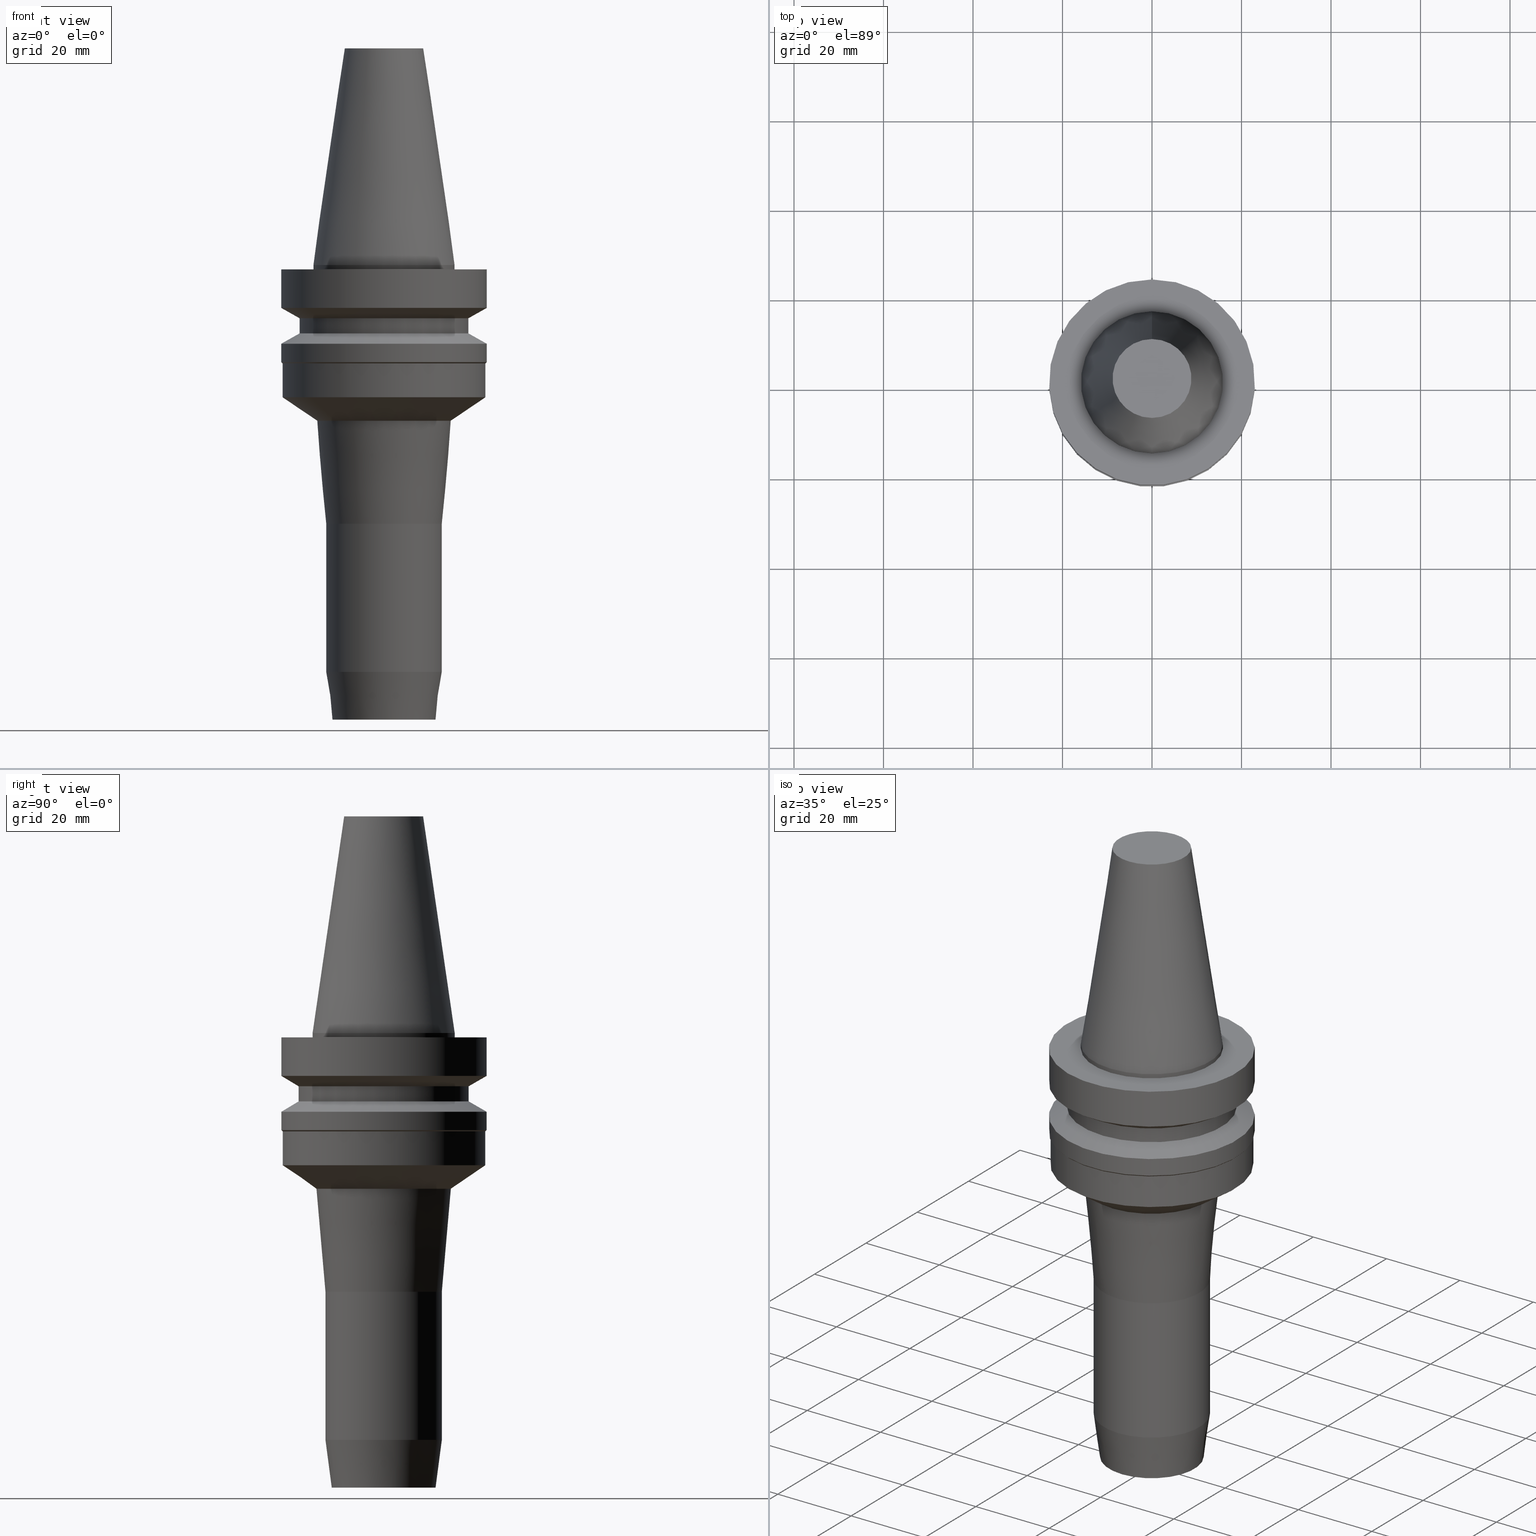
[diagram: canonical four-view strip — front | top / right | iso, engineering-drawing reading convention]
A machine part, canonical four-view strip (front | top / right | iso — engineering-drawing reading convention). The complete STEP part file that produces these views, byte-faithful:
ISO-10303-21;
HEADER;
FILE_DESCRIPTION((''),'1');
FILE_NAME('V:/90_\X2\53D65F9730C730FC30BF\X0\/00_\X2\6DE18DEF30C730FC30BF\X0\/ALL/BBT-BKUS\X2\FF76FF80FF9BFF78FF9E752852A05DE556F3\X0\201801/BBT30-HDC/BBT30-HDC.250-4.stp','2018-02-07T04:17:21',(''),(''),'Spatial Interop R21 SP3','Kubotek KeyCreator 2011 V10.0.2 (22737)',' ');
FILE_SCHEMA(('automotive_design'));
ENDSEC;
DATA;
#1=MECHANICAL_DESIGN_GEOMETRIC_PRESENTATION_REPRESENTATION(' ',(#10,#11,#12,#13,#14,#15,#16,#17,#18,#19,#20,#21,#22,#23,#24,#25,#26,#27,#28,#29,#30,#31,#32,#33,#34,#35,#36,#37,#38,#39,#40,#41),#6);
#2=PRODUCT_DEFINITION_CONTEXT('',#42,'design');
#3=APPLICATION_PROTOCOL_DEFINITION('INTERNATIONAL STANDARD','automotive_design',1994,#42);
#4=PRODUCT_CATEGORY_RELATIONSHIP('NONE','NONE',#43,#44);
#5=SHAPE_DEFINITION_REPRESENTATION(#45,#46);
#6= (GEOMETRIC_REPRESENTATION_CONTEXT(3)GLOBAL_UNCERTAINTY_ASSIGNED_CONTEXT((#49))GLOBAL_UNIT_ASSIGNED_CONTEXT((#51,#52,#53))REPRESENTATION_CONTEXT('NONE','WORKSPACE'));
#10=STYLED_ITEM('',(#55),#56);
#11=STYLED_ITEM('',(#57),#58);
#12=STYLED_ITEM('',(#59),#60);
#13=STYLED_ITEM('',(#61,#62),#63);
#14=STYLED_ITEM('',(#64),#65);
#15=STYLED_ITEM('',(#66),#67);
#16=STYLED_ITEM('',(#68,#69),#70);
#17=STYLED_ITEM('',(#71),#72);
#18=STYLED_ITEM('',(#73,#74),#75);
#19=STYLED_ITEM('',(#76),#77);
#20=STYLED_ITEM('',(#78),#79);
#21=STYLED_ITEM('',(#80,#81),#82);
#22=STYLED_ITEM('',(#83),#84);
#23=STYLED_ITEM('',(#85),#86);
#24=STYLED_ITEM('',(#87,#88),#89);
#25=STYLED_ITEM('',(#90),#91);
#26=STYLED_ITEM('',(#92,#93),#94);
#27=STYLED_ITEM('',(#95,#96),#97);
#28=STYLED_ITEM('',(#98,#99),#100);
#29=STYLED_ITEM('',(#101,#102),#103);
#30=STYLED_ITEM('',(#104),#105);
#31=STYLED_ITEM('',(#106,#107),#108);
#32=STYLED_ITEM('',(#109,#110),#111);
#33=STYLED_ITEM('',(#112,#113),#114);
#34=STYLED_ITEM('',(#115,#116),#117);
#35=STYLED_ITEM('',(#118,#119),#120);
#36=STYLED_ITEM('',(#121),#122);
#37=STYLED_ITEM('',(#123),#124);
#38=STYLED_ITEM('',(#125,#126),#127);
#39=STYLED_ITEM('',(#128,#129),#130);
#40=STYLED_ITEM('',(#131,#132),#133);
#41=STYLED_ITEM('',(#134),#135);
#42=APPLICATION_CONTEXT(' ');
#43=PRODUCT_CATEGORY('part','NONE');
#44=PRODUCT_RELATED_PRODUCT_CATEGORY('detail',' ',(#136));
#45=PRODUCT_DEFINITION_SHAPE('NONE','NONE',#137);
#46=ADVANCED_BREP_SHAPE_REPRESENTATION('Unnamed[1]',(#89,#138),#6);
#49=UNCERTAINTY_MEASURE_WITH_UNIT(LENGTH_MEASURE(1.0E-006),#51,'','');
#51= (CONVERSION_BASED_UNIT('MILLIMETRE',#141)LENGTH_UNIT()NAMED_UNIT(#144));
#52= (NAMED_UNIT(#146)PLANE_ANGLE_UNIT()SI_UNIT($,.RADIAN.));
#53= (NAMED_UNIT(#146)SOLID_ANGLE_UNIT()SI_UNIT($,.STERADIAN.));
#55=PRESENTATION_STYLE_ASSIGNMENT((#152));
#56=EDGE_CURVE('Unnamed[1]',#153,#153,#154,.T.);
#57=PRESENTATION_STYLE_ASSIGNMENT((#155));
#58=EDGE_CURVE('Unnamed[1]',#156,#156,#157,.T.);
#59=PRESENTATION_STYLE_ASSIGNMENT((#158));
#60=EDGE_CURVE('Unnamed[1]',#159,#159,#160,.T.);
#61=PRESENTATION_STYLE_ASSIGNMENT((#161));
#62=PRESENTATION_STYLE_ASSIGNMENT((#162));
#63=ADVANCED_FACE('Unnamed[1]',(#163,#164),#165,.T.);
#64=PRESENTATION_STYLE_ASSIGNMENT((#166));
#65=EDGE_CURVE('Unnamed[1]',#167,#167,#168,.T.);
#66=PRESENTATION_STYLE_ASSIGNMENT((#169));
#67=EDGE_CURVE('Unnamed[1]',#170,#170,#171,.T.);
#68=PRESENTATION_STYLE_ASSIGNMENT((#172));
#69=PRESENTATION_STYLE_ASSIGNMENT((#173));
#70=ADVANCED_FACE('Unnamed[1]',(#174,#175),#176,.T.);
#71=PRESENTATION_STYLE_ASSIGNMENT((#177));
#72=EDGE_CURVE('Unnamed[1]',#178,#178,#179,.T.);
#73=PRESENTATION_STYLE_ASSIGNMENT((#180));
#74=PRESENTATION_STYLE_ASSIGNMENT((#181));
#75=ADVANCED_FACE('Unnamed[1]',(#182,#183),#184,.T.);
#76=PRESENTATION_STYLE_ASSIGNMENT((#185));
#77=EDGE_CURVE('Unnamed[1]',#186,#186,#187,.T.);
#78=PRESENTATION_STYLE_ASSIGNMENT((#188));
#79=EDGE_CURVE('Unnamed[1]',#189,#189,#190,.T.);
#80=PRESENTATION_STYLE_ASSIGNMENT((#191));
#81=PRESENTATION_STYLE_ASSIGNMENT((#192));
#82=ADVANCED_FACE('Unnamed[1]',(#193,#194),#195,.T.);
#83=PRESENTATION_STYLE_ASSIGNMENT((#196));
#84=EDGE_CURVE('Unnamed[1]',#197,#197,#198,.T.);
#85=PRESENTATION_STYLE_ASSIGNMENT((#199));
#86=EDGE_CURVE('Unnamed[1]',#200,#200,#201,.T.);
#87=PRESENTATION_STYLE_ASSIGNMENT((#202));
#88=PRESENTATION_STYLE_ASSIGNMENT((#203));
#89=MANIFOLD_SOLID_BREP('Unnamed[1]',#204);
#90=PRESENTATION_STYLE_ASSIGNMENT((#205));
#91=EDGE_CURVE('Unnamed[1]',#206,#206,#207,.T.);
#92=PRESENTATION_STYLE_ASSIGNMENT((#208));
#93=PRESENTATION_STYLE_ASSIGNMENT((#209));
#94=ADVANCED_FACE('Unnamed[1]',(#210,#211),#212,.T.);
#95=PRESENTATION_STYLE_ASSIGNMENT((#213));
#96=PRESENTATION_STYLE_ASSIGNMENT((#214));
#97=ADVANCED_FACE('Unnamed[1]',(#215),#216,.T.);
#98=PRESENTATION_STYLE_ASSIGNMENT((#217));
#99=PRESENTATION_STYLE_ASSIGNMENT((#218));
#100=ADVANCED_FACE('Unnamed[1]',(#219,#220),#221,.T.);
#101=PRESENTATION_STYLE_ASSIGNMENT((#222));
#102=PRESENTATION_STYLE_ASSIGNMENT((#223));
#103=ADVANCED_FACE('Unnamed[1]',(#224,#225),#226,.T.);
#104=PRESENTATION_STYLE_ASSIGNMENT((#227));
#105=EDGE_CURVE('Unnamed[1]',#228,#228,#229,.T.);
#106=PRESENTATION_STYLE_ASSIGNMENT((#230));
#107=PRESENTATION_STYLE_ASSIGNMENT((#231));
#108=ADVANCED_FACE('Unnamed[1]',(#232,#233),#234,.T.);
#109=PRESENTATION_STYLE_ASSIGNMENT((#235));
#110=PRESENTATION_STYLE_ASSIGNMENT((#236));
#111=ADVANCED_FACE('Unnamed[1]',(#237,#238),#239,.T.);
#112=PRESENTATION_STYLE_ASSIGNMENT((#240));
#113=PRESENTATION_STYLE_ASSIGNMENT((#241));
#114=ADVANCED_FACE('Unnamed[1]',(#242,#243),#244,.T.);
#115=PRESENTATION_STYLE_ASSIGNMENT((#245));
#116=PRESENTATION_STYLE_ASSIGNMENT((#246));
#117=ADVANCED_FACE('Unnamed[1]',(#247,#248),#249,.T.);
#118=PRESENTATION_STYLE_ASSIGNMENT((#250));
#119=PRESENTATION_STYLE_ASSIGNMENT((#251));
#120=ADVANCED_FACE('Unnamed[1]',(#252,#253),#254,.T.);
#121=PRESENTATION_STYLE_ASSIGNMENT((#255));
#122=EDGE_CURVE('Unnamed[1]',#256,#256,#257,.T.);
#123=PRESENTATION_STYLE_ASSIGNMENT((#258));
#124=EDGE_CURVE('Unnamed[1]',#259,#259,#260,.T.);
#125=PRESENTATION_STYLE_ASSIGNMENT((#261));
#126=PRESENTATION_STYLE_ASSIGNMENT((#262));
#127=ADVANCED_FACE('Unnamed[1]',(#263,#264),#265,.T.);
#128=PRESENTATION_STYLE_ASSIGNMENT((#266));
#129=PRESENTATION_STYLE_ASSIGNMENT((#267));
#130=ADVANCED_FACE('Unnamed[1]',(#268,#269),#270,.T.);
#131=PRESENTATION_STYLE_ASSIGNMENT((#271));
#132=PRESENTATION_STYLE_ASSIGNMENT((#272));
#133=ADVANCED_FACE('Unnamed[1]',(#273),#274,.T.);
#134=PRESENTATION_STYLE_ASSIGNMENT((#275));
#135=EDGE_CURVE('Unnamed[1]',#276,#276,#277,.T.);
#136=PRODUCT('Unnamed[1]','Unnamed[1]','PART-Unnamed[1]-DESC',(#278));
#137=PRODUCT_DEFINITION('NONE','NONE',#279,#2);
#138=AXIS2_PLACEMENT_3D('',#280,#281,#282);
#141=LENGTH_MEASURE_WITH_UNIT(LENGTH_MEASURE(1.0),#283);
#144=DIMENSIONAL_EXPONENTS(1.0,0.0,0.0,0.0,0.0,0.0,0.0);
#146=DIMENSIONAL_EXPONENTS(0.0,0.0,0.0,0.0,0.0,0.0,0.0);
#152=CURVE_STYLE('',#284,POSITIVE_LENGTH_MEASURE(1000.0),#285);
#153=VERTEX_POINT('',#286);
#154=CIRCLE('',#287,8.81650000198669);
#155=CURVE_STYLE('',#288,POSITIVE_LENGTH_MEASURE(1000.0),#289);
#156=VERTEX_POINT('',#290);
#157=CIRCLE('',#291,22.7000000162305);
#158=CURVE_STYLE('',#292,POSITIVE_LENGTH_MEASURE(1000.0),#293);
#159=VERTEX_POINT('',#294);
#160=CIRCLE('',#295,13.0);
#161=SURFACE_STYLE_USAGE(.BOTH.,#296);
#162=CURVE_STYLE('',#297,POSITIVE_LENGTH_MEASURE(1000.0),#298);
#163=FACE_BOUND('',#299,.T.);
#164=FACE_BOUND('',#300,.T.);
#165=CONICAL_SURFACE('',#301,21.0,1.04719755058882);
#166=CURVE_STYLE('',#302,POSITIVE_LENGTH_MEASURE(1000.0),#303);
#167=VERTEX_POINT('',#304);
#168=CIRCLE('',#305,23.0);
#169=CURVE_STYLE('',#306,POSITIVE_LENGTH_MEASURE(1000.0),#307);
#170=VERTEX_POINT('',#308);
#171=CIRCLE('',#309,19.0);
#172=SURFACE_STYLE_USAGE(.BOTH.,#310);
#173=CURVE_STYLE('',#311,POSITIVE_LENGTH_MEASURE(1000.0),#312);
#174=FACE_BOUND('',#313,.T.);
#175=FACE_BOUND('',#314,.T.);
#176=CONICAL_SURFACE('',#315,12.3457500009933,0.144815870013618);
#177=CURVE_STYLE('',#316,POSITIVE_LENGTH_MEASURE(1000.0),#317);
#178=VERTEX_POINT('',#318);
#179=CIRCLE('',#319,23.0);
#180=SURFACE_STYLE_USAGE(.BOTH.,#320);
#181=CURVE_STYLE('',#321,POSITIVE_LENGTH_MEASURE(1000.0),#322);
#182=FACE_BOUND('',#323,.T.);
#183=FACE_BOUND('',#324,.T.);
#184=CYLINDRICAL_SURFACE('',#325,23.0);
#185=CURVE_STYLE('',#326,POSITIVE_LENGTH_MEASURE(1000.0),#327);
#186=VERTEX_POINT('',#328);
#187=CIRCLE('',#329,23.0);
#188=CURVE_STYLE('',#330,POSITIVE_LENGTH_MEASURE(1000.0),#331);
#189=VERTEX_POINT('',#332);
#190=CIRCLE('',#333,15.875);
#191=SURFACE_STYLE_USAGE(.BOTH.,#334);
#192=CURVE_STYLE('',#335,POSITIVE_LENGTH_MEASURE(1000.0),#336);
#193=FACE_BOUND('',#337,.T.);
#194=FACE_BOUND('',#338,.T.);
#195=CONICAL_SURFACE('',#339,22.8499999599391,0.785398163397496);
#196=CURVE_STYLE('',#340,POSITIVE_LENGTH_MEASURE(1000.0),#341);
#197=VERTEX_POINT('',#342);
#198=CIRCLE('',#343,19.0);
#199=CURVE_STYLE('',#344,POSITIVE_LENGTH_MEASURE(1000.0),#345);
#200=VERTEX_POINT('',#346);
#201=CIRCLE('',#347,11.5958432516894);
#202=SURFACE_STYLE_USAGE(.BOTH.,#348);
#203=CURVE_STYLE('',#349,POSITIVE_LENGTH_MEASURE(1000.0),#350);
#204=CLOSED_SHELL('',(#97,#70,#127,#100,#75,#130,#117,#63,#120,#82,#111,#103,#94,#108,#114,#133));
#205=CURVE_STYLE('',#351,POSITIVE_LENGTH_MEASURE(1000.0),#352);
#206=VERTEX_POINT('',#353);
#207=CIRCLE('',#354,12.9999999999999);
#208=SURFACE_STYLE_USAGE(.BOTH.,#355);
#209=CURVE_STYLE('',#356,POSITIVE_LENGTH_MEASURE(1000.0),#357);
#210=FACE_BOUND('',#358,.T.);
#211=FACE_BOUND('',#359,.T.);
#212=CONICAL_SURFACE('',#360,14.0069242961124,0.0872664625997087);
#213=SURFACE_STYLE_USAGE(.BOTH.,#361);
#214=CURVE_STYLE('',#362,POSITIVE_LENGTH_MEASURE(1000.0),#363);
#215=FACE_OUTER_BOUND('',#364,.T.);
#216=PLANE('',#365);
#217=SURFACE_STYLE_USAGE(.BOTH.,#366);
#218=CURVE_STYLE('',#367,POSITIVE_LENGTH_MEASURE(1000.0),#368);
#219=FACE_OUTER_BOUND('',#369,.T.);
#220=FACE_BOUND('',#370,.T.);
#221=PLANE('',#371);
#222=SURFACE_STYLE_USAGE(.BOTH.,#372);
#223=CURVE_STYLE('',#373,POSITIVE_LENGTH_MEASURE(1000.0),#374);
#224=FACE_BOUND('',#375,.T.);
#225=FACE_BOUND('',#376,.T.);
#226=CONICAL_SURFACE('',#377,18.8569243042276,0.972499977363279);
#227=CURVE_STYLE('',#378,POSITIVE_LENGTH_MEASURE(1000.0),#379);
#228=VERTEX_POINT('',#380);
#229=CIRCLE('',#381,22.6999999198782);
#230=SURFACE_STYLE_USAGE(.BOTH.,#382);
#231=CURVE_STYLE('',#383,POSITIVE_LENGTH_MEASURE(1000.0),#384);
#232=FACE_BOUND('',#385,.T.);
#233=FACE_BOUND('',#386,.T.);
#234=CYLINDRICAL_SURFACE('',#387,13.0);
#235=SURFACE_STYLE_USAGE(.BOTH.,#388);
#236=CURVE_STYLE('',#389,POSITIVE_LENGTH_MEASURE(1000.0),#390);
#237=FACE_BOUND('',#391,.T.);
#238=FACE_BOUND('',#392,.T.);
#239=CYLINDRICAL_SURFACE('',#393,22.6999999680544);
#240=SURFACE_STYLE_USAGE(.BOTH.,#394);
#241=CURVE_STYLE('',#395,POSITIVE_LENGTH_MEASURE(1000.0),#396);
#242=FACE_BOUND('',#397,.T.);
#243=FACE_BOUND('',#398,.T.);
#244=CONICAL_SURFACE('',#399,12.2979216258446,0.130899693899575);
#245=SURFACE_STYLE_USAGE(.BOTH.,#400);
#246=CURVE_STYLE('',#401,POSITIVE_LENGTH_MEASURE(1000.0),#402);
#247=FACE_BOUND('',#403,.T.);
#248=FACE_BOUND('',#404,.T.);
#249=CYLINDRICAL_SURFACE('',#405,19.0);
#250=SURFACE_STYLE_USAGE(.BOTH.,#406);
#251=CURVE_STYLE('',#407,POSITIVE_LENGTH_MEASURE(1000.0),#408);
#252=FACE_BOUND('',#409,.T.);
#253=FACE_BOUND('',#410,.T.);
#254=CYLINDRICAL_SURFACE('',#411,23.0);
#255=CURVE_STYLE('',#412,POSITIVE_LENGTH_MEASURE(1000.0),#413);
#256=VERTEX_POINT('',#414);
#257=CIRCLE('',#415,15.0138485922248);
#258=CURVE_STYLE('',#416,POSITIVE_LENGTH_MEASURE(1000.0),#417);
#259=VERTEX_POINT('',#418);
#260=CIRCLE('',#419,15.875);
#261=SURFACE_STYLE_USAGE(.BOTH.,#420);
#262=CURVE_STYLE('',#421,POSITIVE_LENGTH_MEASURE(1000.0),#422);
#263=FACE_BOUND('',#423,.T.);
#264=FACE_BOUND('',#424,.T.);
#265=CYLINDRICAL_SURFACE('',#425,15.875);
#266=SURFACE_STYLE_USAGE(.BOTH.,#426);
#267=CURVE_STYLE('',#427,POSITIVE_LENGTH_MEASURE(1000.0),#428);
#268=FACE_BOUND('',#429,.T.);
#269=FACE_BOUND('',#430,.T.);
#270=CONICAL_SURFACE('',#431,21.0,1.04719755058881);
#271=SURFACE_STYLE_USAGE(.BOTH.,#432);
#272=CURVE_STYLE('',#433,POSITIVE_LENGTH_MEASURE(1000.0),#434);
#273=FACE_OUTER_BOUND('',#435,.T.);
#274=PLANE('',#436);
#275=CURVE_STYLE('',#437,POSITIVE_LENGTH_MEASURE(1000.0),#438);
#276=VERTEX_POINT('',#439);
#277=CIRCLE('',#440,23.0);
#278=PRODUCT_CONTEXT('',#42,'mechanical');
#279=PRODUCT_DEFINITION_FORMATION_WITH_SPECIFIED_SOURCE(' ','NONE',#136,.NOT_KNOWN.);
#280=CARTESIAN_POINT('',(0.0,0.0,0.0));
#281=DIRECTION('',(0.0,0.0,1.0));
#282=DIRECTION('',(1.0,0.0,0.0));
#283= (NAMED_UNIT(#144)LENGTH_UNIT()SI_UNIT(.MILLI.,.METRE.));
#284=DRAUGHTING_PRE_DEFINED_CURVE_FONT('continuous');
#285=COLOUR_RGB('',0.0,1.0,0.0);
#286=CARTESIAN_POINT('',(-2.96364525393659E-015,8.81650000198669,48.4));
#287=AXIS2_PLACEMENT_3D('',#442,#443,#444);
#288=DRAUGHTING_PRE_DEFINED_CURVE_FONT('continuous');
#289=COLOUR_RGB('',0.0,1.0,0.0);
#290=CARTESIAN_POINT('',(1.81029905155659E-015,22.7000000162305,-29.5644271118332));
#291=AXIS2_PLACEMENT_3D('',#445,#446,#447);
#292=DRAUGHTING_PRE_DEFINED_CURVE_FONT('continuous');
#293=COLOUR_RGB('',0.0,1.0,0.0);
#294=CARTESIAN_POINT('',(3.54057636101507E-015,13.0,-57.8220000000026));
#295=AXIS2_PLACEMENT_3D('',#448,#449,#450);
#296=SURFACE_SIDE_STYLE('',(#451));
#297=DRAUGHTING_PRE_DEFINED_CURVE_FONT('continuous');
#298=COLOUR_RGB('',0.0,1.0,0.0);
#299=EDGE_LOOP('',(#452));
#300=EDGE_LOOP('',(#453));
#301=AXIS2_PLACEMENT_3D('',#454,#455,#456);
#302=DRAUGHTING_PRE_DEFINED_CURVE_FONT('continuous');
#303=COLOUR_RGB('',0.0,1.0,0.0);
#304=CARTESIAN_POINT('',(5.87830463590729E-016,23.0,-9.59999999999999));
#305=AXIS2_PLACEMENT_3D('',#457,#458,#459);
#306=DRAUGHTING_PRE_DEFINED_CURVE_FONT('continuous');
#307=COLOUR_RGB('',0.0,1.0,0.0);
#308=CARTESIAN_POINT('',(9.36279151221199E-016,19.0,-15.29059892));
#309=AXIS2_PLACEMENT_3D('',#460,#461,#462);
#310=SURFACE_SIDE_STYLE('',(#463));
#311=DRAUGHTING_PRE_DEFINED_CURVE_FONT('continuous');
#312=COLOUR_RGB('',0.0,1.0,0.0);
#313=EDGE_LOOP('',(#464));
#314=EDGE_LOOP('',(#465));
#315=AXIS2_PLACEMENT_3D('',#466,#467,#468);
#316=DRAUGHTING_PRE_DEFINED_CURVE_FONT('continuous');
#317=COLOUR_RGB('',0.0,1.0,0.0);
#318=CARTESIAN_POINT('',(6.12323399573674E-017,23.0,-0.999999999999997));
#319=AXIS2_PLACEMENT_3D('',#469,#470,#471);
#320=SURFACE_SIDE_STYLE('',(#472));
#321=DRAUGHTING_PRE_DEFINED_CURVE_FONT('continuous');
#322=COLOUR_RGB('',0.0,1.0,0.0);
#323=EDGE_LOOP('',(#473));
#324=EDGE_LOOP('',(#474));
#325=AXIS2_PLACEMENT_3D('',#475,#476,#477);
#326=DRAUGHTING_PRE_DEFINED_CURVE_FONT('continuous');
#327=COLOUR_RGB('',0.0,1.0,0.0);
#328=CARTESIAN_POINT('',(1.07768918324967E-015,23.0,-17.6));
#329=AXIS2_PLACEMENT_3D('',#478,#479,#480);
#330=DRAUGHTING_PRE_DEFINED_CURVE_FONT('continuous');
#331=COLOUR_RGB('',0.0,1.0,0.0);
#332=CARTESIAN_POINT('',(6.12323399573675E-017,15.875,-0.999999999999998));
#333=AXIS2_PLACEMENT_3D('',#481,#482,#483);
#334=SURFACE_SIDE_STYLE('',(#484));
#335=DRAUGHTING_PRE_DEFINED_CURVE_FONT('continuous');
#336=COLOUR_RGB('',0.0,1.0,0.0);
#337=EDGE_LOOP('',(#485));
#338=EDGE_LOOP('',(#486));
#339=AXIS2_PLACEMENT_3D('',#487,#488,#489);
#340=DRAUGHTING_PRE_DEFINED_CURVE_FONT('continuous');
#341=COLOUR_RGB('',0.0,1.0,0.0);
#342=CARTESIAN_POINT('',(7.29240495619202E-016,19.0,-11.90940108));
#343=AXIS2_PLACEMENT_3D('',#490,#491,#492);
#344=DRAUGHTING_PRE_DEFINED_CURVE_FONT('continuous');
#345=COLOUR_RGB('',0.0,1.0,0.0);
#346=CARTESIAN_POINT('',(6.22120573966868E-015,11.5958432516894,-101.600000000002));
#347=AXIS2_PLACEMENT_3D('',#493,#494,#495);
#348=SURFACE_SIDE_STYLE('',(#496));
#349=DRAUGHTING_PRE_DEFINED_CURVE_FONT('continuous');
#350=COLOUR_RGB('',0.0,1.0,0.0);
#351=DRAUGHTING_PRE_DEFINED_CURVE_FONT('continuous');
#352=COLOUR_RGB('',0.0,1.0,0.0);
#353=CARTESIAN_POINT('',(5.56812429464021E-015,12.9999999999999,-90.9343706041114));
#354=AXIS2_PLACEMENT_3D('',#497,#498,#499);
#355=SURFACE_SIDE_STYLE('',(#500));
#356=DRAUGHTING_PRE_DEFINED_CURVE_FONT('continuous');
#357=COLOUR_RGB('',0.0,1.0,0.0);
#358=EDGE_LOOP('',(#501));
#359=EDGE_LOOP('',(#502));
#360=AXIS2_PLACEMENT_3D('',#503,#504,#505);
#361=SURFACE_SIDE_STYLE('',(#506));
#362=DRAUGHTING_PRE_DEFINED_CURVE_FONT('continuous');
#363=COLOUR_RGB('',0.0,1.0,0.0);
#364=EDGE_LOOP('',(#507));
#365=AXIS2_PLACEMENT_3D('',#508,#509,#510);
#366=SURFACE_SIDE_STYLE('',(#511));
#367=DRAUGHTING_PRE_DEFINED_CURVE_FONT('continuous');
#368=COLOUR_RGB('',0.0,1.0,0.0);
#369=EDGE_LOOP('',(#512));
#370=EDGE_LOOP('',(#513));
#371=AXIS2_PLACEMENT_3D('',#514,#515,#516);
#372=SURFACE_SIDE_STYLE('',(#517));
#373=DRAUGHTING_PRE_DEFINED_CURVE_FONT('continuous');
#374=COLOUR_RGB('',0.0,1.0,0.0);
#375=EDGE_LOOP('',(#518));
#376=EDGE_LOOP('',(#519));
#377=AXIS2_PLACEMENT_3D('',#520,#521,#522);
#378=DRAUGHTING_PRE_DEFINED_CURVE_FONT('continuous');
#379=COLOUR_RGB('',0.0,1.0,0.0);
#380=CARTESIAN_POINT('',(1.34711148396834E-015,22.6999999198783,-22.0000000801252));
#381=AXIS2_PLACEMENT_3D('',#523,#524,#525);
#382=SURFACE_SIDE_STYLE('',(#526));
#383=DRAUGHTING_PRE_DEFINED_CURVE_FONT('continuous');
#384=COLOUR_RGB('',0.0,1.0,0.0);
#385=EDGE_LOOP('',(#527));
#386=EDGE_LOOP('',(#528));
#387=AXIS2_PLACEMENT_3D('',#529,#530,#531);
#388=SURFACE_SIDE_STYLE('',(#532));
#389=DRAUGHTING_PRE_DEFINED_CURVE_FONT('continuous');
#390=COLOUR_RGB('',0.0,1.0,0.0);
#391=EDGE_LOOP('',(#533));
#392=EDGE_LOOP('',(#534));
#393=AXIS2_PLACEMENT_3D('',#535,#536,#537);
#394=SURFACE_SIDE_STYLE('',(#538));
#395=DRAUGHTING_PRE_DEFINED_CURVE_FONT('continuous');
#396=COLOUR_RGB('',0.0,1.0,0.0);
#397=EDGE_LOOP('',(#539));
#398=EDGE_LOOP('',(#540));
#399=AXIS2_PLACEMENT_3D('',#541,#542,#543);
#400=SURFACE_SIDE_STYLE('',(#544));
#401=DRAUGHTING_PRE_DEFINED_CURVE_FONT('continuous');
#402=COLOUR_RGB('',0.0,1.0,0.0);
#403=EDGE_LOOP('',(#545));
#404=EDGE_LOOP('',(#546));
#405=AXIS2_PLACEMENT_3D('',#547,#548,#549);
#406=SURFACE_SIDE_STYLE('',(#550));
#407=DRAUGHTING_PRE_DEFINED_CURVE_FONT('continuous');
#408=COLOUR_RGB('',0.0,1.0,0.0);
#409=EDGE_LOOP('',(#551));
#410=EDGE_LOOP('',(#552));
#411=AXIS2_PLACEMENT_3D('',#553,#554,#555);
#412=DRAUGHTING_PRE_DEFINED_CURVE_FONT('continuous');
#413=COLOUR_RGB('',0.0,1.0,0.0);
#414=CARTESIAN_POINT('',(2.13110618908541E-015,15.0138485922248,-34.8036052610298));
#415=AXIS2_PLACEMENT_3D('',#556,#557,#558);
#416=DRAUGHTING_PRE_DEFINED_CURVE_FONT('continuous');
#417=COLOUR_RGB('',0.0,1.0,0.0);
#418=CARTESIAN_POINT('',(-1.95674482349743E-031,15.875,1.94412679364642E-015));
#419=AXIS2_PLACEMENT_3D('',#559,#560,#561);
#420=SURFACE_SIDE_STYLE('',(#562));
#421=DRAUGHTING_PRE_DEFINED_CURVE_FONT('continuous');
#422=COLOUR_RGB('',0.0,1.0,0.0);
#423=EDGE_LOOP('',(#563));
#424=EDGE_LOOP('',(#564));
#425=AXIS2_PLACEMENT_3D('',#565,#566,#567);
#426=SURFACE_SIDE_STYLE('',(#568));
#427=DRAUGHTING_PRE_DEFINED_CURVE_FONT('continuous');
#428=COLOUR_RGB('',0.0,1.0,0.0);
#429=EDGE_LOOP('',(#569));
#430=EDGE_LOOP('',(#570));
#431=AXIS2_PLACEMENT_3D('',#571,#572,#573);
#432=SURFACE_SIDE_STYLE('',(#574));
#433=DRAUGHTING_PRE_DEFINED_CURVE_FONT('continuous');
#434=COLOUR_RGB('',0.0,1.0,0.0);
#435=EDGE_LOOP('',(#575));
#436=AXIS2_PLACEMENT_3D('',#576,#577,#578);
#437=DRAUGHTING_PRE_DEFINED_CURVE_FONT('continuous');
#438=COLOUR_RGB('',0.0,1.0,0.0);
#439=CARTESIAN_POINT('',(1.32874177707509E-015,23.0,-21.7000000000035));
#440=AXIS2_PLACEMENT_3D('',#579,#580,#581);
#442=CARTESIAN_POINT('',(-2.96364525393659E-015,-5.92729050787319E-015,48.4));
#443=DIRECTION('',(6.12323399573677E-017,1.22464679914735E-016,-1.0));
#444=DIRECTION('',(-1.23259516440783E-032,1.0,1.22464679914735E-016));
#445=CARTESIAN_POINT('',(1.81029905155659E-015,3.62059810311318E-015,-29.5644271118332));
#446=DIRECTION('',(6.12323399573676E-017,1.22464679914735E-016,-1.0));
#447=DIRECTION('',(-1.23259516440783E-032,1.0,1.22464679914735E-016));
#448=CARTESIAN_POINT('',(3.54057636101507E-015,7.08115272203014E-015,-57.8220000000026));
#449=DIRECTION('',(6.12323399573677E-017,1.22464679914735E-016,-1.0));
#450=DIRECTION('',(-1.23259516440783E-032,1.0,1.22464679914735E-016));
#451=SURFACE_STYLE_FILL_AREA(#582);
#452=ORIENTED_EDGE('',*,*,#77,.F.);
#453=ORIENTED_EDGE('',*,*,#67,.T.);
#454=CARTESIAN_POINT('',(1.00698416723543E-015,2.01396833447087E-015,-16.44529946));
#455=DIRECTION('',(6.12323399573677E-017,1.22464679914735E-016,-1.0));
#456=DIRECTION('',(-1.23259516440783E-032,1.0,1.22464679914735E-016));
#457=CARTESIAN_POINT('',(5.87830463590729E-016,1.17566092718146E-015,-9.59999999999999));
#458=DIRECTION('',(6.12323399573677E-017,1.22464679914735E-016,-1.0));
#459=DIRECTION('',(-1.23259516440783E-032,1.0,1.22464679914735E-016));
#460=CARTESIAN_POINT('',(9.36279151221199E-016,1.8725583024424E-015,-15.29059892));
#461=DIRECTION('',(6.12323399573677E-017,1.22464679914735E-016,-1.0));
#462=DIRECTION('',(-1.23259516440783E-032,1.0,1.22464679914735E-016));
#463=SURFACE_STYLE_FILL_AREA(#583);
#464=ORIENTED_EDGE('',*,*,#124,.F.);
#465=ORIENTED_EDGE('',*,*,#56,.T.);
#466=CARTESIAN_POINT('',(-1.4818226269683E-015,-2.96364525393659E-015,24.2));
#467=DIRECTION('',(6.12323399573677E-017,1.22464679914735E-016,-1.0));
#468=DIRECTION('',(-1.23259516440783E-032,1.0,1.22464679914735E-016));
#469=CARTESIAN_POINT('',(6.12323399573677E-017,1.22464679914735E-016,-1.0));
#470=DIRECTION('',(6.12323399573677E-017,1.22464679914735E-016,-1.0));
#471=DIRECTION('',(-1.23259516440783E-032,1.0,1.22464679914735E-016));
#472=SURFACE_STYLE_FILL_AREA(#584);
#473=ORIENTED_EDGE('',*,*,#65,.F.);
#474=ORIENTED_EDGE('',*,*,#72,.T.);
#475=CARTESIAN_POINT('',(3.24531401774048E-016,6.49062803548097E-016,-5.3));
#476=DIRECTION('',(6.12323399573677E-017,1.22464679914735E-016,-1.0));
#477=DIRECTION('',(-1.23259516440783E-032,1.0,1.22464679914735E-016));
#478=CARTESIAN_POINT('',(1.07768918324967E-015,2.15537836649934E-015,-17.6));
#479=DIRECTION('',(6.12323399573677E-017,1.22464679914735E-016,-1.0));
#480=DIRECTION('',(-1.23259516440783E-032,1.0,1.22464679914735E-016));
#481=CARTESIAN_POINT('',(6.12323399573677E-017,1.22464679914735E-016,-1.0));
#482=DIRECTION('',(6.12323399573677E-017,1.22464679914735E-016,-1.0));
#483=DIRECTION('',(-1.23259516440783E-032,1.0,1.22464679914735E-016));
#484=SURFACE_STYLE_FILL_AREA(#585);
#485=ORIENTED_EDGE('',*,*,#105,.F.);
#486=ORIENTED_EDGE('',*,*,#135,.T.);
#487=CARTESIAN_POINT('',(1.33792663052172E-015,2.67585326104343E-015,-21.8500000400643));
#488=DIRECTION('',(-6.12323399573677E-017,-1.22464679914735E-016,1.0));
#489=DIRECTION('',(-1.23259516440783E-032,1.0,1.22464679914735E-016));
#490=CARTESIAN_POINT('',(7.29240495619202E-016,1.4584809912384E-015,-11.90940108));
#491=DIRECTION('',(6.12323399573677E-017,1.22464679914735E-016,-1.0));
#492=DIRECTION('',(-1.23259516440783E-032,1.0,1.22464679914735E-016));
#493=CARTESIAN_POINT('',(6.22120573966868E-015,1.24424114793374E-014,-101.600000000002));
#494=DIRECTION('',(6.12323399573676E-017,1.22464679914735E-016,-1.0));
#495=DIRECTION('',(-1.23259516440783E-032,1.0,1.22464679914735E-016));
#496=SURFACE_STYLE_FILL_AREA(#586);
#497=CARTESIAN_POINT('',(5.56812429464021E-015,1.11362485892804E-014,-90.9343706041114));
#498=DIRECTION('',(6.12323399573677E-017,1.22464679914735E-016,-1.0));
#499=DIRECTION('',(-1.23259516440783E-032,1.0,1.22464679914735E-016));
#500=SURFACE_STYLE_FILL_AREA(#587);
#501=ORIENTED_EDGE('',*,*,#60,.F.);
#502=ORIENTED_EDGE('',*,*,#122,.T.);
#503=CARTESIAN_POINT('',(2.83584127505024E-015,5.67168255010048E-015,-46.3128026305162));
#504=DIRECTION('',(-6.12323399573677E-017,-1.22464679914735E-016,1.0));
#505=DIRECTION('',(-1.23259516440783E-032,1.0,1.22464679914735E-016));
#506=SURFACE_STYLE_FILL_AREA(#588);
#507=ORIENTED_EDGE('',*,*,#56,.F.);
#508=CARTESIAN_POINT('',(-2.96364525393659E-015,4.40825000099334,48.4));
#509=DIRECTION('',(-6.12323399573677E-017,-1.22464679914735E-016,1.0));
#510=DIRECTION('',(1.23259516440783E-032,-1.0,-1.22464679914735E-016));
#511=SURFACE_STYLE_FILL_AREA(#589);
#512=ORIENTED_EDGE('',*,*,#72,.F.);
#513=ORIENTED_EDGE('',*,*,#79,.T.);
#514=CARTESIAN_POINT('',(6.12323399573674E-017,19.4375,-0.999999999999998));
#515=DIRECTION('',(-6.12323399573677E-017,-1.22464679914735E-016,1.0));
#516=DIRECTION('',(1.23259516440783E-032,-1.0,-1.22464679914735E-016));
#517=SURFACE_STYLE_FILL_AREA(#590);
#518=ORIENTED_EDGE('',*,*,#122,.F.);
#519=ORIENTED_EDGE('',*,*,#58,.T.);
#520=CARTESIAN_POINT('',(1.970702620321E-015,3.94140524064199E-015,-32.1840161864315));
#521=DIRECTION('',(-6.12323399573677E-017,-1.22464679914735E-016,1.0));
#522=DIRECTION('',(-1.23259516440783E-032,1.0,1.22464679914735E-016));
#523=CARTESIAN_POINT('',(1.34711148396834E-015,2.69422296793668E-015,-22.0000000801252));
#524=DIRECTION('',(6.12323399573677E-017,1.22464679914735E-016,-1.0));
#525=DIRECTION('',(-1.23259516440783E-032,1.0,1.22464679914735E-016));
#526=SURFACE_STYLE_FILL_AREA(#591);
#527=ORIENTED_EDGE('',*,*,#91,.F.);
#528=ORIENTED_EDGE('',*,*,#60,.T.);
#529=CARTESIAN_POINT('',(4.55435032782764E-015,9.10870065565528E-015,-74.378185302057));
#530=DIRECTION('',(6.12323399573677E-017,1.22464679914735E-016,-1.0));
#531=DIRECTION('',(-1.23259516440783E-032,1.0,1.22464679914735E-016));
#532=SURFACE_STYLE_FILL_AREA(#592);
#533=ORIENTED_EDGE('',*,*,#58,.F.);
#534=ORIENTED_EDGE('',*,*,#105,.T.);
#535=CARTESIAN_POINT('',(1.57870526776247E-015,3.15741053552493E-015,-25.7822135959792));
#536=DIRECTION('',(6.12323399573677E-017,1.22464679914735E-016,-1.0));
#537=DIRECTION('',(-1.23259516440783E-032,1.0,1.22464679914735E-016));
#538=SURFACE_STYLE_FILL_AREA(#593);
#539=ORIENTED_EDGE('',*,*,#86,.F.);
#540=ORIENTED_EDGE('',*,*,#91,.T.);
#541=CARTESIAN_POINT('',(5.89466501715445E-015,1.17893300343089E-014,-96.2671853020568));
#542=DIRECTION('',(-6.12323399573677E-017,-1.22464679914735E-016,1.0));
#543=DIRECTION('',(-1.23259516440783E-032,1.0,1.22464679914735E-016));
#544=SURFACE_STYLE_FILL_AREA(#594);
#545=ORIENTED_EDGE('',*,*,#67,.F.);
#546=ORIENTED_EDGE('',*,*,#84,.T.);
#547=CARTESIAN_POINT('',(8.32759823420201E-016,1.6655196468404E-015,-13.6));
#548=DIRECTION('',(6.12323399573677E-017,1.22464679914735E-016,-1.0));
#549=DIRECTION('',(-1.23259516440783E-032,1.0,1.22464679914735E-016));
#550=SURFACE_STYLE_FILL_AREA(#595);
#551=ORIENTED_EDGE('',*,*,#135,.F.);
#552=ORIENTED_EDGE('',*,*,#77,.T.);
#553=CARTESIAN_POINT('',(1.20321548016238E-015,2.40643096032476E-015,-19.6500000000017));
#554=DIRECTION('',(6.12323399573677E-017,1.22464679914735E-016,-1.0));
#555=DIRECTION('',(-1.23259516440783E-032,1.0,1.22464679914735E-016));
#556=CARTESIAN_POINT('',(2.13110618908541E-015,4.26221237817081E-015,-34.8036052610298));
#557=DIRECTION('',(6.12323399573677E-017,1.22464679914735E-016,-1.0));
#558=DIRECTION('',(-1.23259516440783E-032,1.0,1.22464679914735E-016));
#559=CARTESIAN_POINT('',(0.0,0.0,0.0));
#560=DIRECTION('',(6.12323399573677E-017,1.22464679914735E-016,-1.0));
#561=DIRECTION('',(-1.23259516440783E-032,1.0,1.22464679914735E-016));
#562=SURFACE_STYLE_FILL_AREA(#596);
#563=ORIENTED_EDGE('',*,*,#79,.F.);
#564=ORIENTED_EDGE('',*,*,#124,.T.);
#565=CARTESIAN_POINT('',(3.06161699786838E-017,6.12323399573676E-017,-0.5));
#566=DIRECTION('',(6.12323399573677E-017,1.22464679914735E-016,-1.0));
#567=DIRECTION('',(-1.23259516440783E-032,1.0,1.22464679914735E-016));
#568=SURFACE_STYLE_FILL_AREA(#597);
#569=ORIENTED_EDGE('',*,*,#84,.F.);
#570=ORIENTED_EDGE('',*,*,#65,.T.);
#571=CARTESIAN_POINT('',(6.58535479604966E-016,1.31707095920993E-015,-10.75470054));
#572=DIRECTION('',(-6.12323399573677E-017,-1.22464679914735E-016,1.0));
#573=DIRECTION('',(-1.23259516440783E-032,1.0,1.22464679914735E-016));
#574=SURFACE_STYLE_FILL_AREA(#598);
#575=ORIENTED_EDGE('',*,*,#86,.T.);
#576=CARTESIAN_POINT('',(6.22120573966869E-015,5.79792162584469,-101.600000000002));
#577=DIRECTION('',(6.12323399573677E-017,1.23775930106049E-014,-1.0));
#578=DIRECTION('',(-7.62736135810064E-031,1.0,1.23775930106049E-014));
#579=CARTESIAN_POINT('',(1.32874177707509E-015,2.65748355415018E-015,-21.7000000000035));
#580=DIRECTION('',(6.12323399573677E-017,1.22464679914735E-016,-1.0));
#581=DIRECTION('',(-1.23259516440783E-032,1.0,1.22464679914735E-016));
#582=FILL_AREA_STYLE('',(#599));
#583=FILL_AREA_STYLE('',(#600));
#584=FILL_AREA_STYLE('',(#601));
#585=FILL_AREA_STYLE('',(#602));
#586=FILL_AREA_STYLE('',(#603));
#587=FILL_AREA_STYLE('',(#604));
#588=FILL_AREA_STYLE('',(#605));
#589=FILL_AREA_STYLE('',(#606));
#590=FILL_AREA_STYLE('',(#607));
#591=FILL_AREA_STYLE('',(#608));
#592=FILL_AREA_STYLE('',(#609));
#593=FILL_AREA_STYLE('',(#610));
#594=FILL_AREA_STYLE('',(#611));
#595=FILL_AREA_STYLE('',(#612));
#596=FILL_AREA_STYLE('',(#613));
#597=FILL_AREA_STYLE('',(#614));
#598=FILL_AREA_STYLE('',(#615));
#599=FILL_AREA_STYLE_COLOUR('',#616);
#600=FILL_AREA_STYLE_COLOUR('',#617);
#601=FILL_AREA_STYLE_COLOUR('',#618);
#602=FILL_AREA_STYLE_COLOUR('',#619);
#603=FILL_AREA_STYLE_COLOUR('',#620);
#604=FILL_AREA_STYLE_COLOUR('',#621);
#605=FILL_AREA_STYLE_COLOUR('',#622);
#606=FILL_AREA_STYLE_COLOUR('',#623);
#607=FILL_AREA_STYLE_COLOUR('',#624);
#608=FILL_AREA_STYLE_COLOUR('',#625);
#609=FILL_AREA_STYLE_COLOUR('',#626);
#610=FILL_AREA_STYLE_COLOUR('',#627);
#611=FILL_AREA_STYLE_COLOUR('',#628);
#612=FILL_AREA_STYLE_COLOUR('',#629);
#613=FILL_AREA_STYLE_COLOUR('',#630);
#614=FILL_AREA_STYLE_COLOUR('',#631);
#615=FILL_AREA_STYLE_COLOUR('',#632);
#616=COLOUR_RGB('',0.0,1.0,0.0);
#617=COLOUR_RGB('',0.0,1.0,0.0);
#618=COLOUR_RGB('',0.0,1.0,0.0);
#619=COLOUR_RGB('',0.0,1.0,0.0);
#620=COLOUR_RGB('',0.0,1.0,0.0);
#621=COLOUR_RGB('',0.0,1.0,0.0);
#622=COLOUR_RGB('',0.0,1.0,0.0);
#623=COLOUR_RGB('',0.0,1.0,0.0);
#624=COLOUR_RGB('',0.0,1.0,0.0);
#625=COLOUR_RGB('',0.0,1.0,0.0);
#626=COLOUR_RGB('',0.0,1.0,0.0);
#627=COLOUR_RGB('',0.0,1.0,0.0);
#628=COLOUR_RGB('',0.0,1.0,0.0);
#629=COLOUR_RGB('',0.0,1.0,0.0);
#630=COLOUR_RGB('',0.0,1.0,0.0);
#631=COLOUR_RGB('',0.0,1.0,0.0);
#632=COLOUR_RGB('',0.0,1.0,0.0);
ENDSEC;
END-ISO-10303-21;
